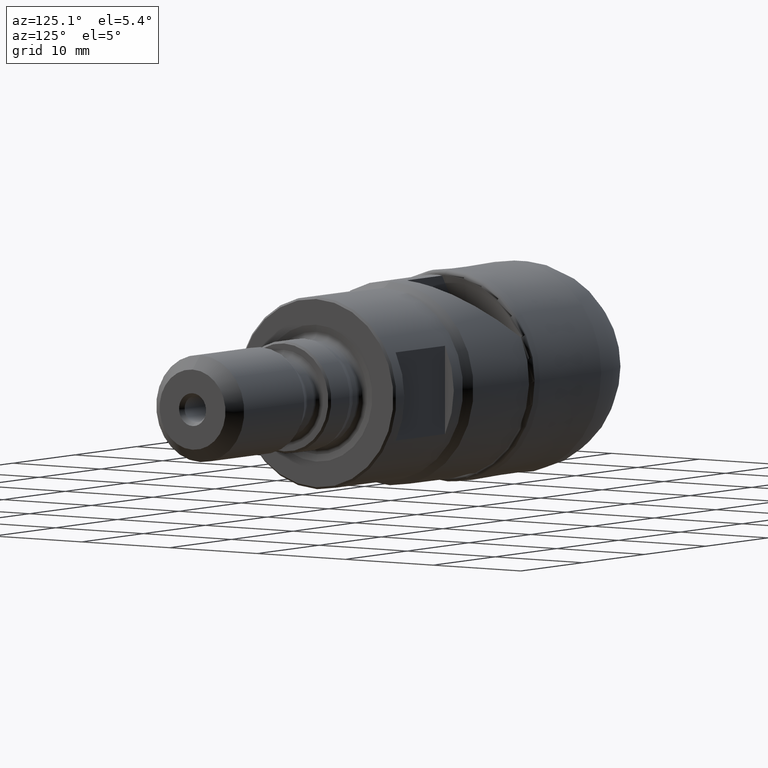
[diagram: clean part render]
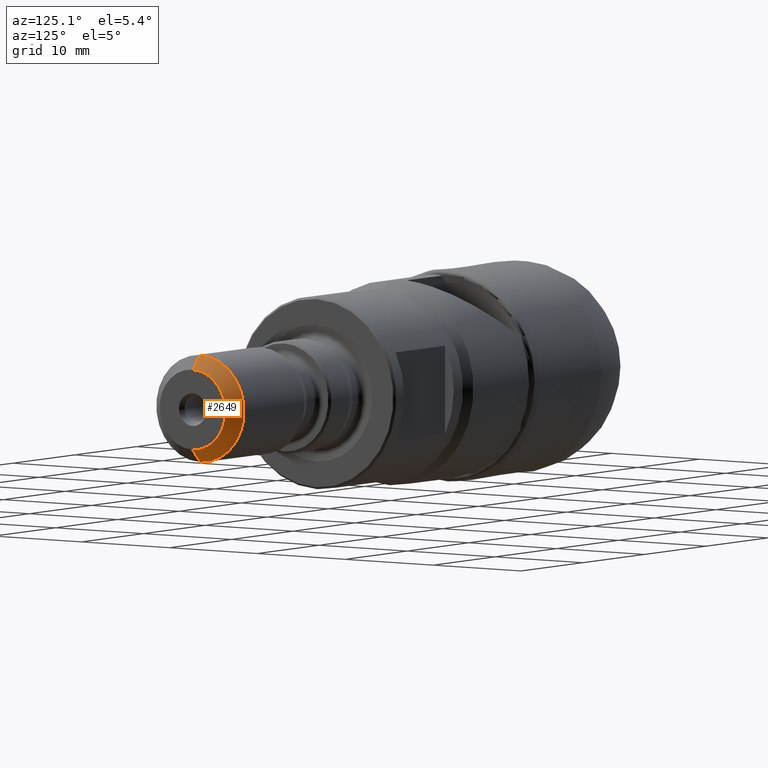
[diagram: same view with one face highlighted and labeled with its STEP entity id]
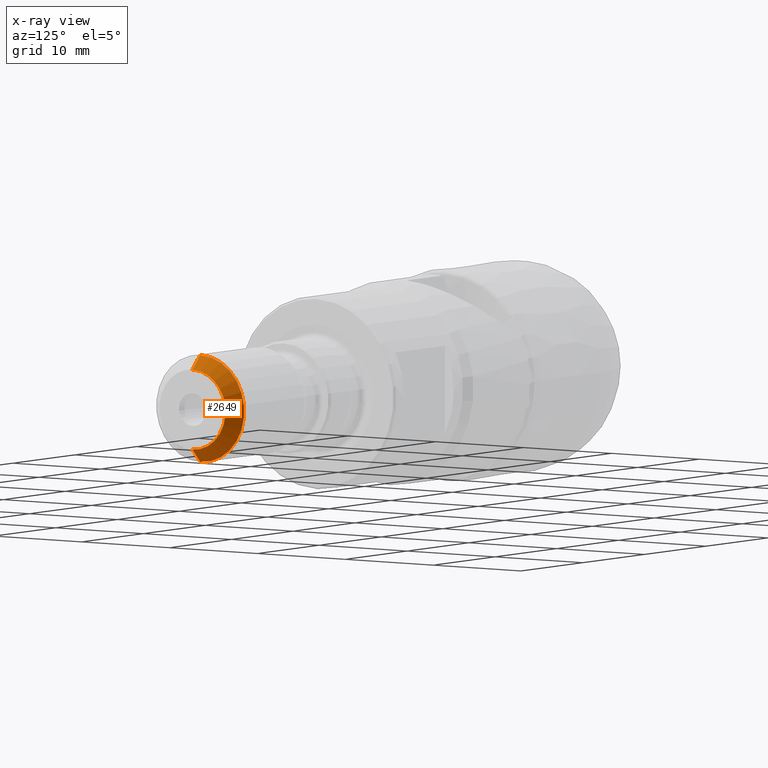
[diagram: x-ray of the same camera — body ghosted, the highlighted face saturated]
A machine part, auxiliary view. The second image highlights one B-rep face of the part: STEP entity #2649.
The next image is the same camera in x-ray: the body ghosted, the highlighted face saturated — about 0% of this face is hidden behind the body in this view.
In plain terms, the highlighted conical surface has half-angle 45 deg.
Its self-contained STEP definition (entity closure, byte-faithful):
#24 = VERTEX_POINT ( 'NONE', #3649 ) ;
#142 = CIRCLE ( 'NONE', #1107, 3.749999999999986677 ) ;
#249 = DIRECTION ( 'NONE',  ( 0.0000000000000000000, 0.0000000000000000000, 1.000000000000000000 ) ) ;
#443 = AXIS2_PLACEMENT_3D ( 'NONE', #2077, #3501, #1762 ) ;
#952 = CARTESIAN_POINT ( 'NONE',  ( 62.03724642999999617, 0.0000000000000000000, 0.0000000000000000000 ) ) ;
#1099 = EDGE_LOOP ( 'NONE', ( #4419, #3517, #1450, #3810 ) ) ;
#1107 = AXIS2_PLACEMENT_3D ( 'NONE', #952, #4530, #249 ) ;
#1259 = CIRCLE ( 'NONE', #443, 5.000000000000000000 ) ;
#1338 = AXIS2_PLACEMENT_3D ( 'NONE', #2117, #4239, #4218 ) ;
#1450 = ORIENTED_EDGE ( 'NONE', *, *, #1986, .F. ) ;
#1677 = VERTEX_POINT ( 'NONE', #2060 ) ;
#1762 = DIRECTION ( 'NONE',  ( 0.0000000000000000000, 0.0000000000000000000, 1.000000000000000000 ) ) ;
#1764 = LINE ( 'NONE', #3813, #2669 ) ;
#1793 = CONICAL_SURFACE ( 'NONE', #1338, 3.749999999999986677, 0.7853981633974531640 ) ;
#1881 = EDGE_CURVE ( 'NONE', #1677, #3903, #3904, .T. ) ;
#1986 = EDGE_CURVE ( 'NONE', #3903, #3278, #1259, .T. ) ;
#2060 = CARTESIAN_POINT ( 'NONE',  ( 62.03724642999999617, 0.0000000000000000000, 3.749999999999986677 ) ) ;
#2077 = CARTESIAN_POINT ( 'NONE',  ( 60.78724642999999617, 0.0000000000000000000, 0.0000000000000000000 ) ) ;
#2117 = CARTESIAN_POINT ( 'NONE',  ( 62.03724642999999617, 0.0000000000000000000, 0.0000000000000000000 ) ) ;
#2462 = VECTOR ( 'NONE', #2770, 1000.000000000000000 ) ;
#2649 = ADVANCED_FACE ( 'NONE', ( #2741 ), #1793, .T. ) ;
#2669 = VECTOR ( 'NONE', #3473, 1000.000000000000000 ) ;
#2741 = FACE_OUTER_BOUND ( 'NONE', #1099, .T. ) ;
#2770 = DIRECTION ( 'NONE',  ( -0.7071067811865441310, 0.0000000000000000000, 0.7071067811865510144 ) ) ;
#2795 = CARTESIAN_POINT ( 'NONE',  ( 60.78724642999999617, 0.0000000000000000000, 5.000000000000000000 ) ) ;
#3167 = CARTESIAN_POINT ( 'NONE',  ( 62.03724642999999617, 0.0000000000000000000, 3.749999999999986677 ) ) ;
#3278 = VERTEX_POINT ( 'NONE', #4564 ) ;
#3473 = DIRECTION ( 'NONE',  ( -0.7071067811865441310, 8.659560562354975999E-17, -0.7071067811865510144 ) ) ;
#3501 = DIRECTION ( 'NONE',  ( -1.000000000000000000, 0.0000000000000000000, 0.0000000000000000000 ) ) ;
#3517 = ORIENTED_EDGE ( 'NONE', *, *, #4062, .T. ) ;
#3649 = CARTESIAN_POINT ( 'NONE',  ( 62.03724642999999617, 5.357829746269662732E-16, -3.749999999999986677 ) ) ;
#3810 = ORIENTED_EDGE ( 'NONE', *, *, #1881, .F. ) ;
#3813 = CARTESIAN_POINT ( 'NONE',  ( 62.03724642999999617, 4.592425496802558195E-16, -3.749999999999986677 ) ) ;
#3903 = VERTEX_POINT ( 'NONE', #2795 ) ;
#3904 = LINE ( 'NONE', #3167, #2462 ) ;
#4038 = EDGE_CURVE ( 'NONE', #1677, #24, #142, .T. ) ;
#4062 = EDGE_CURVE ( 'NONE', #24, #3278, #1764, .T. ) ;
#4218 = DIRECTION ( 'NONE',  ( 0.0000000000000000000, 0.0000000000000000000, 1.000000000000000000 ) ) ;
#4239 = DIRECTION ( 'NONE',  ( -1.000000000000000000, 0.0000000000000000000, 0.0000000000000000000 ) ) ;
#4419 = ORIENTED_EDGE ( 'NONE', *, *, #4038, .T. ) ;
#4530 = DIRECTION ( 'NONE',  ( -1.000000000000000000, 0.0000000000000000000, 0.0000000000000000000 ) ) ;
#4564 = CARTESIAN_POINT ( 'NONE',  ( 60.78724642999999617, 6.123233995736766282E-16, -5.000000000000000000 ) ) ;